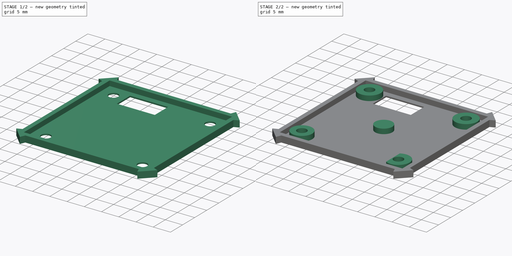
[diagram: build sequence overview — one tinted view per stage of 2, left to right]
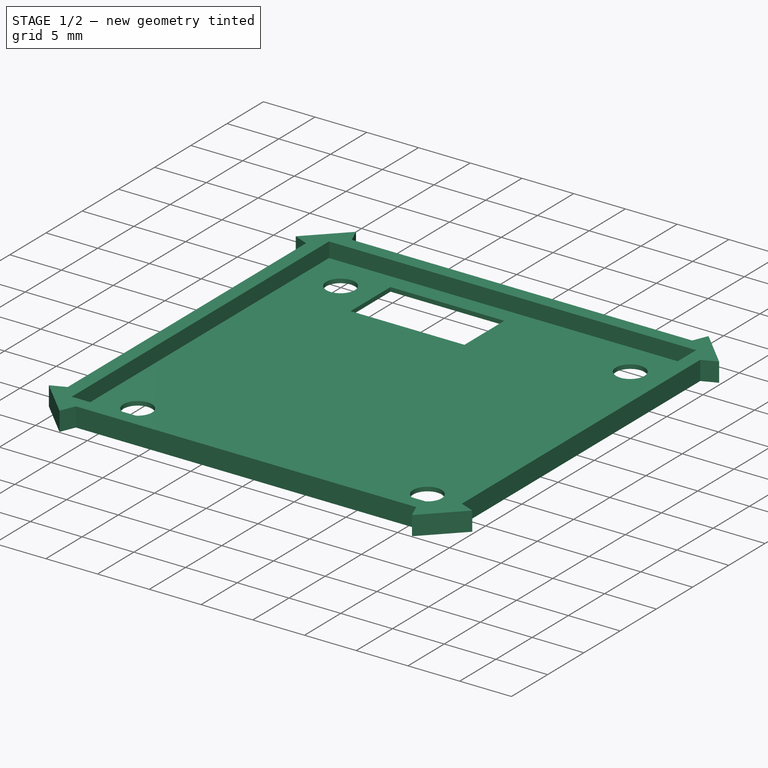
[diagram: stage 1 of 2 — iso view after this stage's code; geometry added in this stage tinted green]
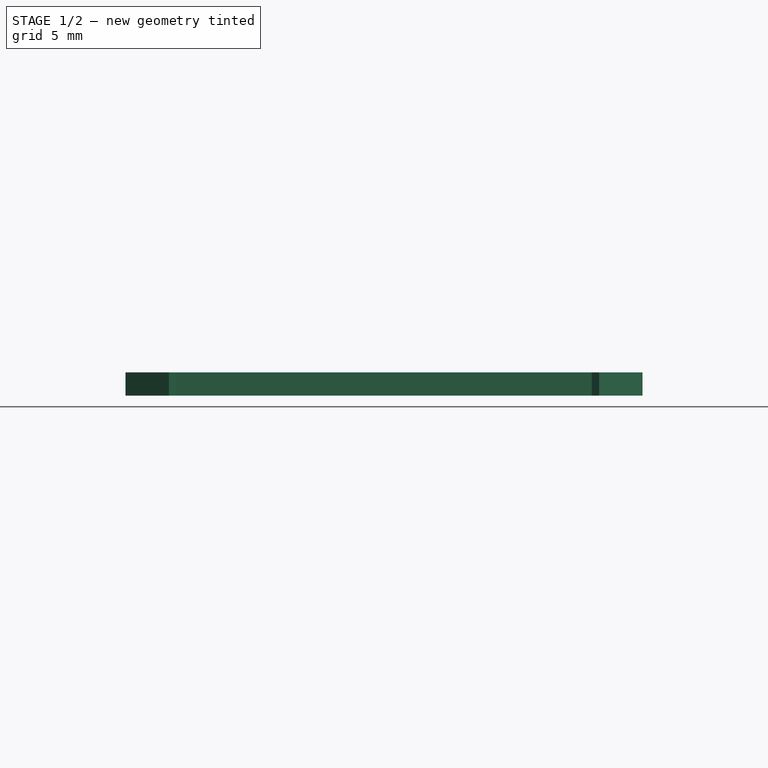
[diagram: stage 1 of 2 — front view after this stage's code; geometry added in this stage tinted green]
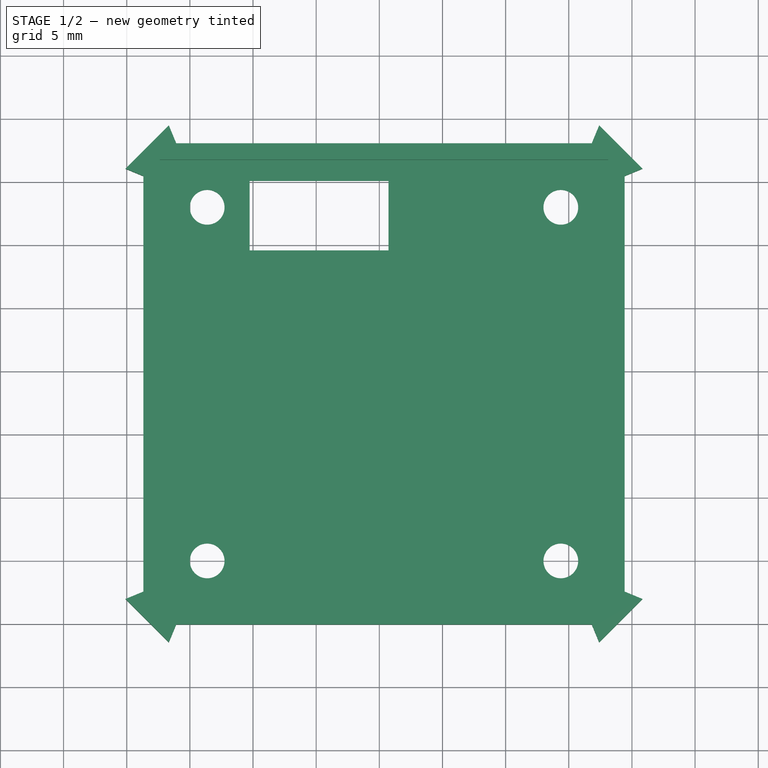
[diagram: stage 1 of 2 — top view after this stage's code; geometry added in this stage tinted green]
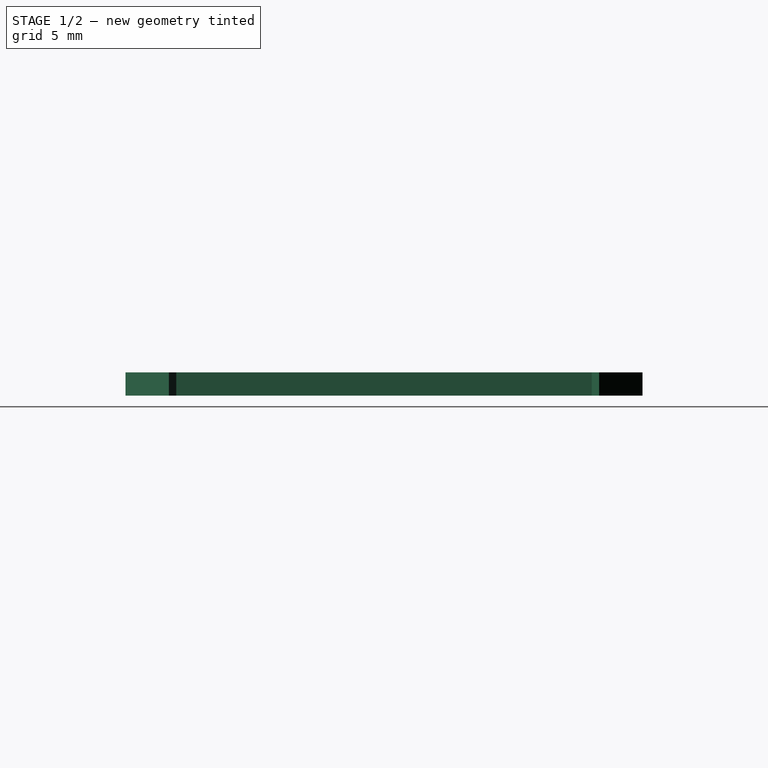
[diagram: stage 1 of 2 — right view after this stage's code; geometry added in this stage tinted green]
FCSTD DOCUMENT  (FreeCAD 0.19R24276 (Git))
Label: bottom-camera-cover
License: All rights reserved
LicenseURL: http://en.wikipedia.org/wiki/All_rights_reserved
objects: Sketcher::SketchObject×3, PartDesign::Pad×3, PartDesign::ShapeBinder×2, PartDesign::Plane×2, PartDesign::Body×1
note: 14 computed .brp shape members not serialized (recipe doc carries the construction recipe); baked Part::Feature solids carry a one-line shape summary decoded from their .brp

FEATURE [PartDesign::ShapeBinder] ShapeBinder
  TraceSupport = false
FEATURE [PartDesign::ShapeBinder] Copyb_OTS_0002_00_usb_webcam_001_002
  Placement = pos=(300.231,104.1,-7.8) rot=(0,0,1;3.14159rad)
  TraceSupport = false
FEATURE [PartDesign::Plane] DatumPlane  label="PrintPlane"
  AttachmentOffset = pos=(0,0,1.85) rot=(0,0,1;0rad)
  Length = 391.307
  MapMode = 5
  Placement = pos=(300.231,104.1,-11.25) rot=(0,1,0;3.14159rad)
  ResizeMode = 0
  Support = -> [Copyb_OTS_0002_00_usb_webcam_001_002]
  Width = 194.947
FEATURE [Sketcher::SketchObject] Sketch
  ExternalGeometry = -> [ShapeBinder,Copyb_OTS_0002_00_usb_webcam_001_002]
  FullyConstrained = true
  MapMode = 5
  Placement = pos=(300.231,104.1,-11.25) rot=(0,1,0;3.14159rad)
  Support = -> [DatumPlane]
  sketch-geometry (31):
    g0: Circle CenterX=-14.1391 CenterY=13.91 CenterZ=0 NormalX=0 NormalY=0 NormalZ=1 AngleXU=0 Radius=1.375
    g1: Circle CenterX=13.8609 CenterY=13.91 CenterZ=0 NormalX=0 NormalY=0 NormalZ=1 AngleXU=0 Radius=1.375
    g2: Circle CenterX=13.8609 CenterY=-14.09 CenterZ=0 NormalX=0 NormalY=0 NormalZ=1 AngleXU=0 Radius=1.375
    g3: Circle CenterX=-14.1391 CenterY=-14.09 CenterZ=0 NormalX=0 NormalY=0 NormalZ=1 AngleXU=0 Radius=1.375
    g4: LineSegment StartX=20.3251 StartY=-17.1258 StartZ=0 EndX=16.8967 EndY=-20.5542 EndZ=0
    g5: LineSegment StartX=16.8967 StartY=-20.5542 StartZ=0 EndX=16.3109 EndY=-19.14 EndZ=0
    g6: LineSegment StartX=16.3109 StartY=-19.14 StartZ=0 EndX=-16.5891 EndY=-19.14 EndZ=0
    g7: LineSegment StartX=-16.5891 StartY=-19.14 StartZ=0 EndX=-17.1749 EndY=-20.5542 EndZ=0
    g8: LineSegment StartX=-17.1749 StartY=-20.5542 StartZ=0 EndX=-20.6033 EndY=-17.1258 EndZ=0
    g9: LineSegment StartX=-20.6033 StartY=-17.1258 StartZ=0 EndX=-19.1891 EndY=-16.54 EndZ=0
    g10: LineSegment StartX=-19.1891 StartY=-16.54 StartZ=0 EndX=-19.1891 EndY=16.36 EndZ=0
    g11: LineSegment StartX=-19.1891 StartY=16.36 StartZ=0 EndX=-20.6033 EndY=16.9458 EndZ=0
    g12: LineSegment StartX=-20.6033 StartY=16.9458 StartZ=0 EndX=-17.1749 EndY=20.3742 EndZ=0
    g13: LineSegment StartX=-17.1749 StartY=20.3742 StartZ=0 EndX=-16.5891 EndY=18.96 EndZ=0
    g14: LineSegment StartX=-16.5891 StartY=18.96 StartZ=0 EndX=16.3109 EndY=18.96 EndZ=0
    g15: LineSegment StartX=16.3109 StartY=18.96 StartZ=0 EndX=16.8967 EndY=20.3742 EndZ=0
    g16: LineSegment StartX=16.8967 StartY=20.3742 StartZ=0 EndX=20.3251 EndY=16.9458 EndZ=0
    g17: LineSegment StartX=20.3251 StartY=16.9458 StartZ=0 EndX=18.9109 EndY=16.36 EndZ=0
    g18: LineSegment StartX=18.9109 StartY=16.36 StartZ=0 EndX=18.9109 EndY=-16.54 EndZ=0
    g19: LineSegment StartX=18.9109 StartY=-16.54 StartZ=0 EndX=20.3251 EndY=-17.1258 EndZ=0
    g20: GeomPoint X=18.6109 Y=-18.84 Z=0
    g21: GeomPoint X=18.6109 Y=-18.84 Z=0
    g22: GeomPoint X=18.6109 Y=-18.84 Z=0
    g23: LineSegment StartX=10 StartY=15.5 StartZ=0 EndX=0 EndY=11 EndZ=0
    g24: GeomPoint X=5 Y=13.25 Z=0
    g25: LineSegment StartX=-0.5 StartY=10.5 StartZ=0 EndX=10.5 EndY=10.5 EndZ=0
    g26: LineSegment StartX=10.5 StartY=10.5 StartZ=0 EndX=10.5 EndY=16 EndZ=0
    g27: LineSegment StartX=10.5 StartY=16 StartZ=0 EndX=-0.5 EndY=16 EndZ=0
    g28: LineSegment StartX=-0.5 StartY=16 StartZ=0 EndX=-0.5 EndY=10.5 EndZ=0
    g29: LineSegment StartX=-0.5 StartY=16 StartZ=0 EndX=10.5 EndY=10.5 EndZ=0
    g30: GeomPoint X=5 Y=13.25 Z=0
  constraints (73):
    c: Coincident(g0,g-31)
    c: Coincident(g1,g-32)
    c: Coincident(g2,g-33)
    c: Coincident(g3,g-34)
    c: Equal(g3,g0)
    c: Equal(g0,g1)
    c: Equal(g1,g2)
    c: Diameter(g3) = 2.75
    c: Coincident(g5,g4)
    c: Coincident(g6,g5)
    c: Horizontal(g6)
    c: Coincident(g7,g6)
    c: Coincident(g8,g7)
    c: Coincident(g9,g8)
    c: Coincident(g10,g9)
    c: Vertical(g10)
    c: Coincident(g11,g10)
    c: Coincident(g12,g11)
    c: Coincident(g13,g12)
    c: Coincident(g14,g13)
    c: Horizontal(g14)
    c: Coincident(g15,g14)
    c: Coincident(g16,g15)
    c: Coincident(g17,g16)
    c: Coincident(g18,g17)
    c: Vertical(g18)
    c: Coincident(g19,g18)
    c: Coincident(g19,g4)
    c: Tangent(g4,g-13)
    c: Symmetric(g4,g4,g20)
    c: Equal(g5,g19)
    c: Coincident(g22,g21)
    c: Symmetric(g-12,g-12,g21)
    c: Vertical(g20,g21)
    c: Equal(g18,g6)
    c: Equal(g6,g10)
    c: Equal(g10,g14)
    c: Equal(g17,g15)
    c: Equal(g15,g13)
    c: Equal(g13,g11)
    c: Equal(g11,g7)
    c: Equal(g7,g9)
    c: Equal(g9,g19)
    c: Parallel(g5,g-10)
    c: Parallel(g-14,g19)
    c: Parallel(g17,g-16)
    c: Parallel(g16,g-17)
    c: Parallel(g15,g-20)
    c: Parallel(g13,g-22)
    c: Parallel(g11,g-26)
    c: Parallel(g9,g-9)
    c: Tangent(g8,g-6)
    c: Parallel(g7,g-8)
    c: Tangent(g12,g-23)
    c: DistanceY(g-10,g5) = 0.2
    c: DistanceX(g-10,g5) = 0.2
    c: Coincident(g23,g-28)
    c: Coincident(g23,g-30)
    c: Symmetric(g23,g23,g24)
    c: Coincident(g25,g26)
    c: Coincident(g26,g27)
    c: Coincident(g27,g28)
    c: Coincident(g28,g25)
    c: Horizontal(g25)
    c: Horizontal(g27)
    c: Vertical(g26)
    c: Vertical(g28)
    c: Coincident(g29,g27)
    c: Coincident(g29,g25)
    c: Symmetric(g29,g29,g30)
    c: Coincident(g30,g24)
    c: DistanceX(g27,g-30) = 0.5
    c: DistanceY(g-30,g27) = 0.5
FEATURE [PartDesign::Pad] Pad
  Direction = (1,1,1)
  Length = 0.4
  Length2 = 100
  Placement = pos=(300.231,104.1,-11.25) rot=(0,1,0;3.14159rad)
  Profile = -> Sketch
  Reversed = true
  Type = 0
FEATURE [PartDesign::Plane] DatumPlane001
  Length = 391.307
  MapMode = 5
  Placement = pos=(300.231,104.1,-10.85) rot=(0,0,1;3.14159rad)
  ResizeMode = 0
  Support = -> [Pad]
  Width = 194.947
FEATURE [Sketcher::SketchObject] Sketch002
  ExternalGeometry = -> [Pad]
  FullyConstrained = true
  MapMode = 5
  Placement = pos=(300.231,104.1,-10.85) rot=(0,0,1;3.14159rad)
  Support = -> [DatumPlane001]
  sketch-geometry (34):
    g0: Circle CenterX=-14.1391 CenterY=14.09 CenterZ=0 NormalX=0 NormalY=0 NormalZ=1 AngleXU=0 Radius=1.375
    g1: Circle CenterX=13.8609 CenterY=-13.91 CenterZ=0 NormalX=0 NormalY=0 NormalZ=1 AngleXU=0 Radius=1.375
    g2: Circle CenterX=-14.1391 CenterY=-13.91 CenterZ=0 NormalX=0 NormalY=0 NormalZ=1 AngleXU=0 Radius=1.375
    g3: Circle CenterX=13.8609 CenterY=14.09 CenterZ=0 NormalX=0 NormalY=0 NormalZ=1 AngleXU=0 Radius=1.375
    g4: Circle CenterX=-14.1391 CenterY=-13.91 CenterZ=0 NormalX=0 NormalY=0 NormalZ=1 AngleXU=0 Radius=3.25
    g5: Circle CenterX=13.8609 CenterY=14.09 CenterZ=0 NormalX=0 NormalY=0 NormalZ=1 AngleXU=0 Radius=3
    g6: ArcOfCircle CenterX=-14.1391 CenterY=14.09 CenterZ=0 NormalX=0 NormalY=0 NormalZ=1 AngleXU=0 Radius=3.25 StartAngle=1.05606 EndAngle=5.22713
    g7: Circle CenterX=13.8609 CenterY=-13.91 CenterZ=0 NormalX=0 NormalY=0 NormalZ=1 AngleXU=0 Radius=3.25
    g8: Circle CenterX=0 CenterY=0 CenterZ=0 NormalX=0 NormalY=0 NormalZ=1 AngleXU=0 Radius=2.5
    g9: LineSegment StartX=16.3109 StartY=-18.96 StartZ=0 EndX=16.8967 EndY=-20.3742 EndZ=0
    g10: LineSegment StartX=16.8967 StartY=-20.3742 StartZ=0 EndX=20.3251 EndY=-16.9458 EndZ=0
    g11: LineSegment StartX=20.3251 StartY=-16.9458 StartZ=0 EndX=18.9109 EndY=-16.36 EndZ=0
    g12: LineSegment StartX=18.9109 StartY=-16.36 StartZ=0 EndX=16.3109 EndY=-18.96 EndZ=0
    g13: LineSegment StartX=-19.1891 StartY=-16.36 StartZ=0 EndX=-20.6033 EndY=-16.9458 EndZ=0
    g14: LineSegment StartX=-20.6033 StartY=-16.9458 StartZ=0 EndX=-17.1749 EndY=-20.3742 EndZ=0
    g15: LineSegment StartX=-16.5891 StartY=-18.96 StartZ=0 EndX=-17.1749 EndY=-20.3742 EndZ=0
    g16: LineSegment StartX=-19.1891 StartY=-16.36 StartZ=0 EndX=-16.5891 EndY=-18.96 EndZ=0
    g17: LineSegment StartX=-16.5891 StartY=19.14 StartZ=0 EndX=-19.1891 EndY=16.54 EndZ=0
    g18: LineSegment StartX=-19.1891 StartY=16.54 StartZ=0 EndX=-20.6033 EndY=17.1258 EndZ=0
    g19: LineSegment StartX=-20.6033 StartY=17.1258 StartZ=0 EndX=-17.1749 EndY=20.5542 EndZ=0
    g20: LineSegment StartX=-17.1749 StartY=20.5542 StartZ=0 EndX=-16.5891 EndY=19.14 EndZ=0
    g21: LineSegment StartX=18.9109 StartY=16.54 StartZ=0 EndX=16.3109 EndY=19.14 EndZ=0
    g22: LineSegment StartX=16.3109 StartY=19.14 StartZ=0 EndX=16.8967 EndY=20.5542 EndZ=0
    g23: LineSegment StartX=16.8967 StartY=20.5542 StartZ=0 EndX=20.3251 EndY=17.1258 EndZ=0
    g24: LineSegment StartX=20.3251 StartY=17.1258 StartZ=0 EndX=18.9109 EndY=16.54 EndZ=0
    g25: LineSegment StartX=17.6109 StartY=-17.66 StartZ=0 EndX=-17.8891 EndY=-17.66 EndZ=0
    g26: LineSegment StartX=-17.8891 StartY=-17.66 StartZ=0 EndX=-17.8891 EndY=17.84 EndZ=0
    g27: LineSegment StartX=-17.8891 StartY=17.84 StartZ=0 EndX=17.6109 EndY=17.84 EndZ=0
    g28: LineSegment StartX=17.6109 StartY=17.84 StartZ=0 EndX=17.6109 EndY=-17.66 EndZ=0
    g29: LineSegment StartX=-19.1891 StartY=-16.36 StartZ=0 EndX=-19.1891 EndY=16.54 EndZ=0
    g30: LineSegment StartX=-16.5891 StartY=19.14 StartZ=0 EndX=16.3109 EndY=19.14 EndZ=0
    g31: LineSegment StartX=18.9109 StartY=16.54 StartZ=0 EndX=18.9109 EndY=-16.36 EndZ=0
    g32: LineSegment StartX=-16.5891 StartY=-18.96 StartZ=0 EndX=16.3109 EndY=-18.96 EndZ=0
    g33: LineSegment StartX=-12.5391 StartY=11.2611 StartZ=0 EndX=-12.5391 EndY=16.9189 EndZ=0
  constraints (71):
    c: Coincident(g0,g-6)
    c: Coincident(g1,g-5)
    c: Coincident(g2,g-4)
    c: Equal(g-4,g2)
    c: Equal(g1,g-5)
    c: Equal(g0,g-6)
    c: Coincident(g3,g-3)
    c: Equal(g-3,g3)
    c: Coincident(g4,g2)
    c: Coincident(g5,g3)
    c: Coincident(g6,g0)
    c: Coincident(g7,g1)
    c: Diameter(g4) = 6.5
    c: Diameter(g5) = 6
    c: Coincident(g8,g-1)
    c: Diameter(g8) = 5
    c: Diameter(g7) = 6.5
    c: Diameter(g6) = 6.5
    c: Coincident(g9,g-22)
    c: Coincident(g9,g-15)
    c: Coincident(g10,g-15)
    c: Coincident(g10,g-14)
    c: Coincident(g11,g10)
    c: Coincident(g11,g-21)
    c: Coincident(g12,g-13)
    c: Coincident(g12,g9)
    c: Coincident(g13,g-19)
    c: Coincident(g13,g-18)
    c: Coincident(g14,g13)
    c: Coincident(g14,g-18)
    c: Coincident(g15,g-22)
    c: Coincident(g15,g14)
    c: Coincident(g16,g13)
    c: Coincident(g16,g15)
    c: Coincident(g17,g-20)
    c: Coincident(g17,g-19)
    c: Coincident(g18,g17)
    c: Coincident(g18,g-8)
    c: Coincident(g19,g-8)
    c: Coincident(g19,g-9)
    c: Coincident(g20,g17)
    c: Coincident(g20,g19)
    c: Coincident(g21,g-21)
    c: Coincident(g21,g-20)
    c: Coincident(g22,g21)
    c: Coincident(g22,g-12)
    c: Coincident(g23,g22)
    c: Coincident(g23,g-11)
    c: Coincident(g24,g23)
    c: Coincident(g24,g21)
    c: Coincident(g25,g26)
    c: Coincident(g26,g27)
    c: Coincident(g27,g28)
    c: Coincident(g28,g25)
    c: Horizontal(g27)
    c: Vertical(g28)
    c: Symmetric(g17,g17,g26)
    c: Symmetric(g16,g16,g25)
    c: Symmetric(g12,g12,g25)
    c: Coincident(g29,g13)
    c: Coincident(g29,g18)
    c: Coincident(g30,g20)
    c: Coincident(g30,g22)
    c: Coincident(g31,g24)
    c: Coincident(g31,g11)
    c: Coincident(g32,g15)
    c: Coincident(g32,g9)
    c: Vertical(g33)
    c: DistanceX(g0,g33) = 1.6
    c: Coincident(g6,g33)
    c: Coincident(g6,g33)
FEATURE [Sketcher::SketchObject] Sketch001
  ExternalGeometry = -> [Pad]
  FullyConstrained = true
  MapMode = 5
  Placement = pos=(300.231,104.1,-10.85) rot=(0,0,1;3.14159rad)
  Support = -> [DatumPlane001]
  sketch-geometry (33):
    g0: Circle CenterX=-14.1391 CenterY=14.09 CenterZ=0 NormalX=0 NormalY=0 NormalZ=1 AngleXU=0 Radius=1.375
    g1: Circle CenterX=13.8609 CenterY=-13.91 CenterZ=0 NormalX=0 NormalY=0 NormalZ=1 AngleXU=0 Radius=1.375
    g2: Circle CenterX=-14.1391 CenterY=-13.91 CenterZ=0 NormalX=0 NormalY=0 NormalZ=1 AngleXU=0 Radius=1.375
    g3: Circle CenterX=13.8609 CenterY=14.09 CenterZ=0 NormalX=0 NormalY=0 NormalZ=1 AngleXU=0 Radius=1.375
    g4: Circle CenterX=-14.1391 CenterY=-13.91 CenterZ=0 NormalX=0 NormalY=0 NormalZ=1 AngleXU=0 Radius=3.25
    g5: Circle CenterX=13.8609 CenterY=14.09 CenterZ=0 NormalX=0 NormalY=0 NormalZ=1 AngleXU=0 Radius=3
    g6: Circle CenterX=-14.1391 CenterY=14.09 CenterZ=0 NormalX=0 NormalY=0 NormalZ=1 AngleXU=0 Radius=3.25
    g7: Circle CenterX=13.8609 CenterY=-13.91 CenterZ=0 NormalX=0 NormalY=0 NormalZ=1 AngleXU=0 Radius=3.25
    g8: Circle CenterX=0 CenterY=0 CenterZ=0 NormalX=0 NormalY=0 NormalZ=1 AngleXU=0 Radius=2.5
    g9: LineSegment StartX=16.3109 StartY=-18.96 StartZ=0 EndX=16.8967 EndY=-20.3742 EndZ=0
    g10: LineSegment StartX=16.8967 StartY=-20.3742 StartZ=0 EndX=20.3251 EndY=-16.9458 EndZ=0
    g11: LineSegment StartX=20.3251 StartY=-16.9458 StartZ=0 EndX=18.9109 EndY=-16.36 EndZ=0
    g12: LineSegment StartX=18.9109 StartY=-16.36 StartZ=0 EndX=16.3109 EndY=-18.96 EndZ=0
    g13: LineSegment StartX=-19.1891 StartY=-16.36 StartZ=0 EndX=-20.6033 EndY=-16.9458 EndZ=0
    g14: LineSegment StartX=-20.6033 StartY=-16.9458 StartZ=0 EndX=-17.1749 EndY=-20.3742 EndZ=0
    g15: LineSegment StartX=-16.5891 StartY=-18.96 StartZ=0 EndX=-17.1749 EndY=-20.3742 EndZ=0
    g16: LineSegment StartX=-19.1891 StartY=-16.36 StartZ=0 EndX=-16.5891 EndY=-18.96 EndZ=0
    g17: LineSegment StartX=-16.5891 StartY=19.14 StartZ=0 EndX=-19.1891 EndY=16.54 EndZ=0
    g18: LineSegment StartX=-19.1891 StartY=16.54 StartZ=0 EndX=-20.6033 EndY=17.1258 EndZ=0
    g19: LineSegment StartX=-20.6033 StartY=17.1258 StartZ=0 EndX=-17.1749 EndY=20.5542 EndZ=0
    g20: LineSegment StartX=-17.1749 StartY=20.5542 StartZ=0 EndX=-16.5891 EndY=19.14 EndZ=0
    g21: LineSegment StartX=18.9109 StartY=16.54 StartZ=0 EndX=16.3109 EndY=19.14 EndZ=0
    g22: LineSegment StartX=16.3109 StartY=19.14 StartZ=0 EndX=16.8967 EndY=20.5542 EndZ=0
    g23: LineSegment StartX=16.8967 StartY=20.5542 StartZ=0 EndX=20.3251 EndY=17.1258 EndZ=0
    g24: LineSegment StartX=20.3251 StartY=17.1258 StartZ=0 EndX=18.9109 EndY=16.54 EndZ=0
    g25: LineSegment StartX=17.6109 StartY=-17.66 StartZ=0 EndX=-17.8891 EndY=-17.66 EndZ=0
    g26: LineSegment StartX=-17.8891 StartY=-17.66 StartZ=0 EndX=-17.8891 EndY=17.84 EndZ=0
    g27: LineSegment StartX=-17.8891 StartY=17.84 StartZ=0 EndX=17.6109 EndY=17.84 EndZ=0
    g28: LineSegment StartX=17.6109 StartY=17.84 StartZ=0 EndX=17.6109 EndY=-17.66 EndZ=0
    g29: LineSegment StartX=-19.1891 StartY=-16.36 StartZ=0 EndX=-19.1891 EndY=16.54 EndZ=0
    g30: LineSegment StartX=-16.5891 StartY=19.14 StartZ=0 EndX=16.3109 EndY=19.14 EndZ=0
    g31: LineSegment StartX=18.9109 StartY=16.54 StartZ=0 EndX=18.9109 EndY=-16.36 EndZ=0
    g32: LineSegment StartX=-16.5891 StartY=-18.96 StartZ=0 EndX=16.3109 EndY=-18.96 EndZ=0
  constraints (67):
    c: Coincident(g0,g-6)
    c: Coincident(g1,g-5)
    c: Coincident(g2,g-4)
    c: Equal(g-4,g2)
    c: Equal(g1,g-5)
    c: Equal(g0,g-6)
    c: Coincident(g3,g-3)
    c: Equal(g-3,g3)
    c: Coincident(g4,g2)
    c: Coincident(g5,g3)
    c: Coincident(g6,g0)
    c: Coincident(g7,g1)
    c: Diameter(g4) = 6.5
    c: Diameter(g5) = 6
    c: Coincident(g8,g-1)
    c: Diameter(g8) = 5
    c: Diameter(g7) = 6.5
    c: Diameter(g6) = 6.5
    c: Coincident(g9,g-22)
    c: Coincident(g9,g-15)
    c: Coincident(g10,g-15)
    c: Coincident(g10,g-14)
    c: Coincident(g11,g10)
    c: Coincident(g11,g-21)
    c: Coincident(g12,g-13)
    c: Coincident(g12,g9)
    c: Coincident(g13,g-19)
    c: Coincident(g13,g-18)
    c: Coincident(g14,g13)
    c: Coincident(g14,g-18)
    c: Coincident(g15,g-22)
    c: Coincident(g15,g14)
    c: Coincident(g16,g13)
    c: Coincident(g16,g15)
    c: Coincident(g17,g-20)
    c: Coincident(g17,g-19)
    c: Coincident(g18,g17)
    c: Coincident(g18,g-8)
    c: Coincident(g19,g-8)
    c: Coincident(g19,g-9)
    c: Coincident(g20,g17)
    c: Coincident(g20,g19)
    c: Coincident(g21,g-21)
    c: Coincident(g21,g-20)
    c: Coincident(g22,g21)
    c: Coincident(g22,g-12)
    c: Coincident(g23,g22)
    c: Coincident(g23,g-11)
    c: Coincident(g24,g23)
    c: Coincident(g24,g21)
    c: Coincident(g25,g26)
    c: Coincident(g26,g27)
    c: Coincident(g27,g28)
    c: Coincident(g28,g25)
    c: Horizontal(g27)
    c: Vertical(g28)
    c: Symmetric(g17,g17,g26)
    c: Symmetric(g16,g16,g25)
    c: Symmetric(g12,g12,g25)
    c: Coincident(g29,g13)
    c: Coincident(g29,g18)
    c: Coincident(g30,g20)
    c: Coincident(g30,g22)
    c: Coincident(g31,g24)
    c: Coincident(g31,g11)
    c: Coincident(g32,g15)
    c: Coincident(g32,g9)
FEATURE [PartDesign::Pad] Pad001
  BaseFeature = -> Pad
  Direction = (1,1,1)
  Length = 1.45
  Length2 = 100
  Placement = pos=(300.231,104.1,-11.25) rot=(0,1,0;3.14159rad)
  Profile = -> Sketch001
  Type = 0
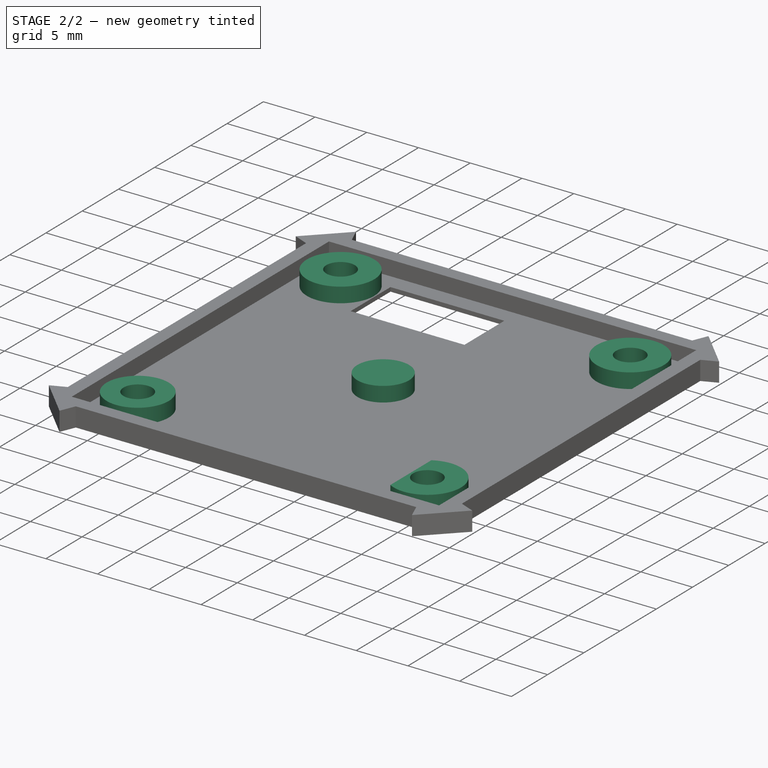
[diagram: stage 2 of 2 — iso view after this stage's code; geometry added in this stage tinted green]
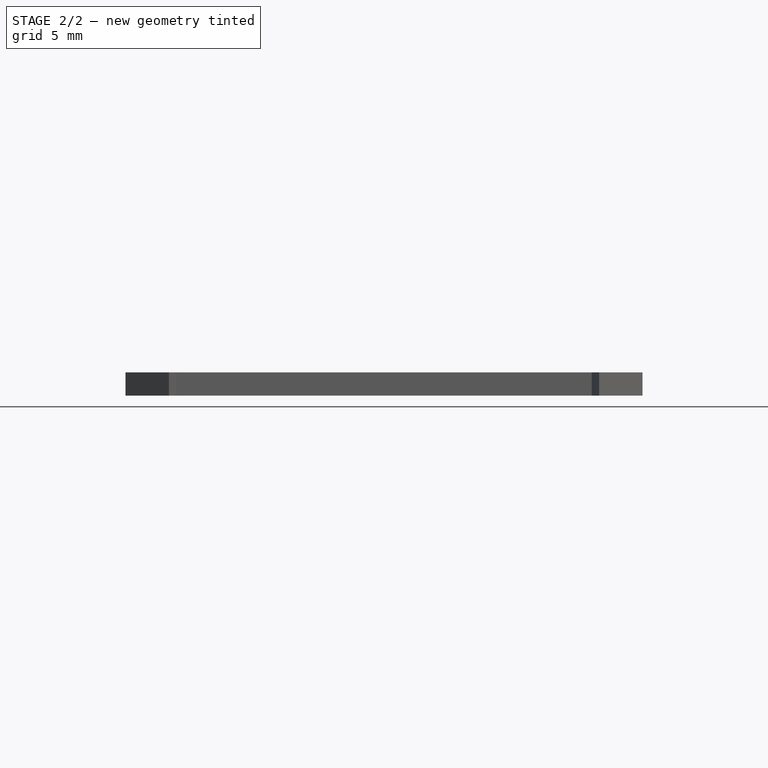
[diagram: stage 2 of 2 — front view after this stage's code; geometry added in this stage tinted green]
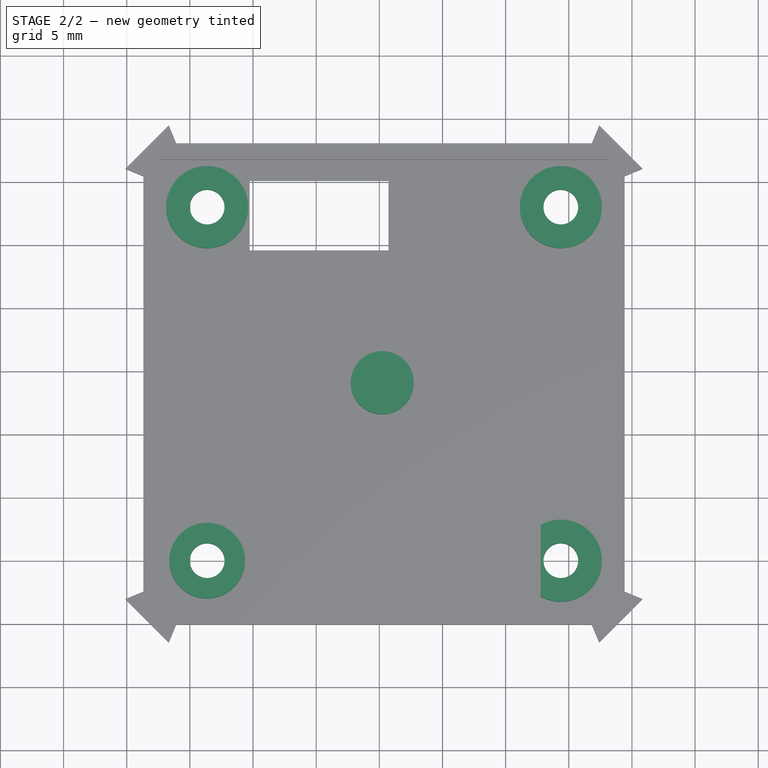
[diagram: stage 2 of 2 — top view after this stage's code; geometry added in this stage tinted green]
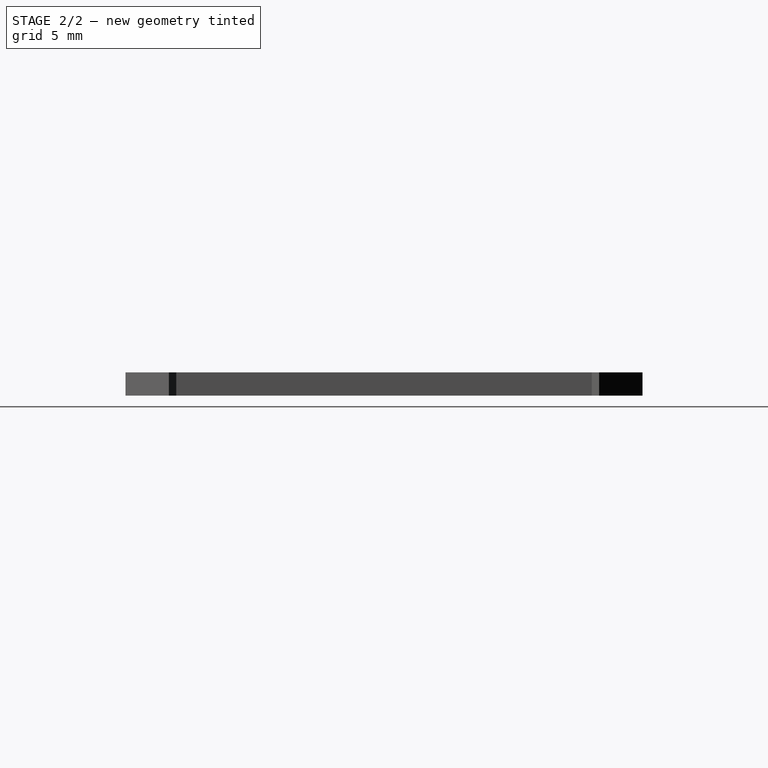
[diagram: stage 2 of 2 — right view after this stage's code; geometry added in this stage tinted green]
FEATURE [PartDesign::Pad] Pad002
  BaseFeature = -> Pad001
  Direction = (1,1,1)
  Length = 1.45
  Length2 = 100
  Placement = pos=(300.231,104.1,-11.25) rot=(0,1,0;3.14159rad)
  Profile = -> Sketch002
  Type = 0
FEATURE [PartDesign::Body] Body
  Group = -> [DatumPlane,Copyb_OTS_0002_00_usb_webcam_001_002,ShapeBinder,Sketch,Pad,DatumPlane001,Sketch001,Pad001,Sketch002,Pad002]
  Origin = -> Origin
  Tip = -> Pad002
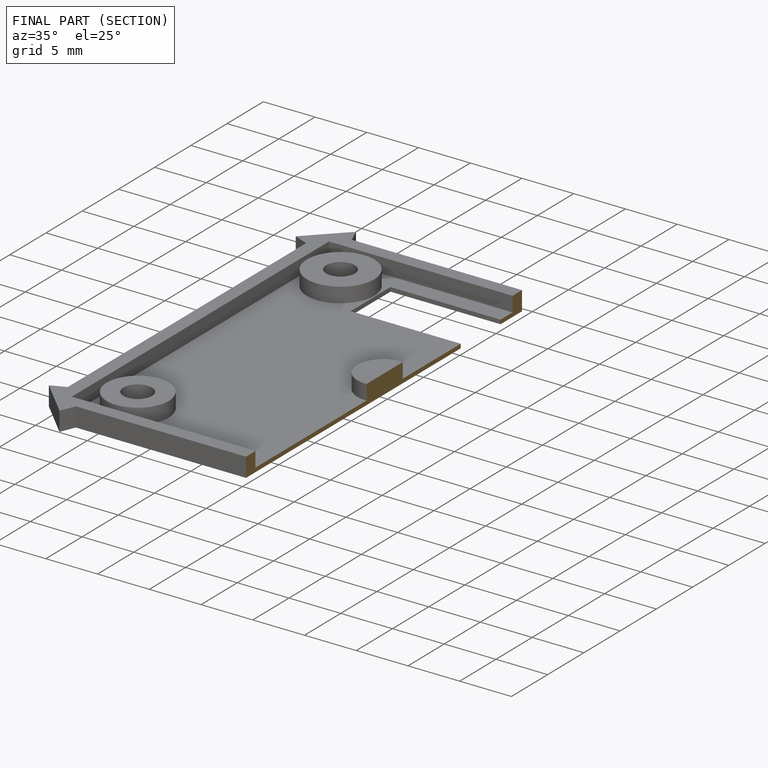
[diagram: finished part — half-section view (interior)]
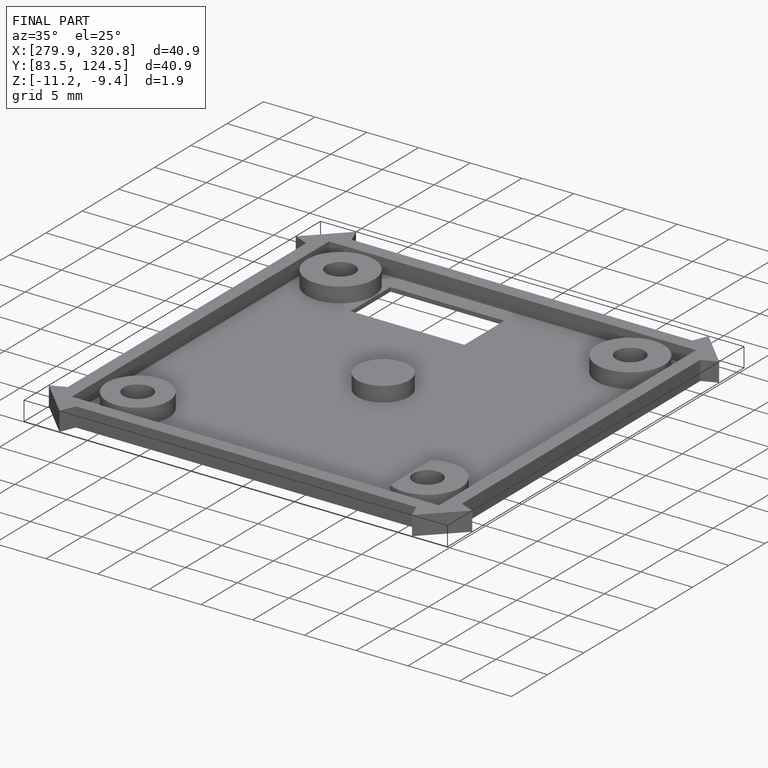
[diagram: finished part — iso view with bounding-box wireframe]
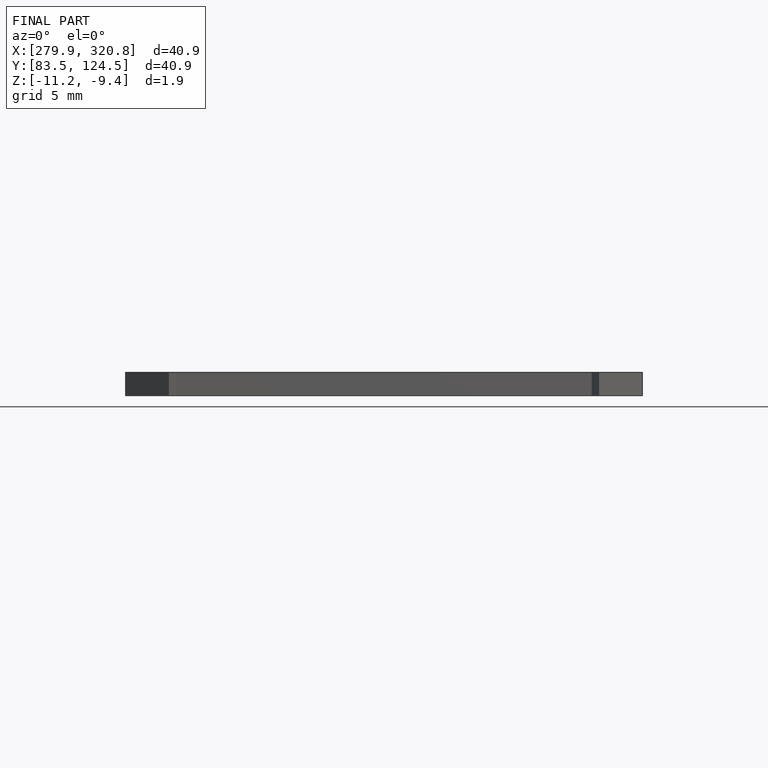
[diagram: finished part — front view with bounding-box wireframe]
